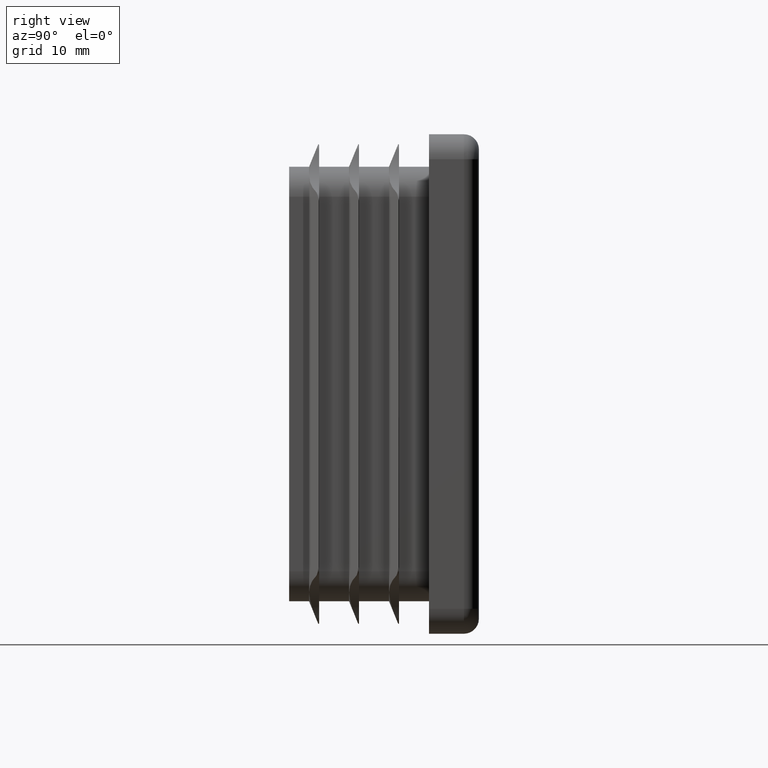
[diagram: clean part render]
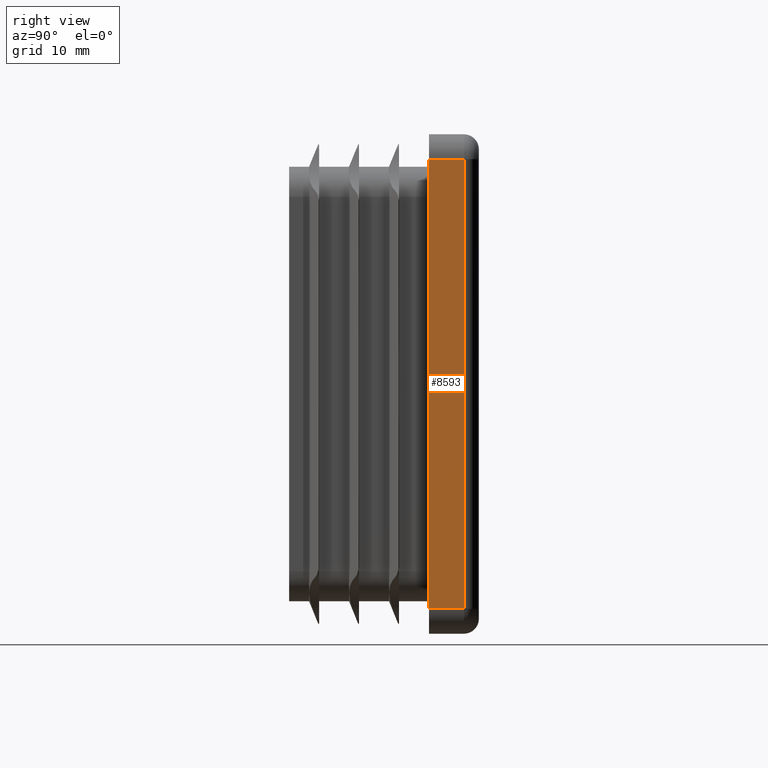
[diagram: same view with one face highlighted and labeled with its STEP entity id]
A machine part, right view. The second image highlights one B-rep face of the part: STEP entity #8593.
In plain terms, the highlighted planar face has unit normal (-1, 0, 0).
Its self-contained STEP definition (entity closure, byte-faithful):
#54 = CARTESIAN_POINT ( 'NONE',  ( 25.00000000000000000, 5.000000000000000000, -25.00000000000000000 ) ) ;
#142 = CARTESIAN_POINT ( 'NONE',  ( 25.00000000000000711, 5.000000000000000000, 22.50000000000000000 ) ) ;
#1197 = LINE ( 'NONE', #10752, #18415 ) ;
#1246 = CARTESIAN_POINT ( 'NONE',  ( 25.00000000000000000, 3.500000000000000000, -22.50000000000000355 ) ) ;
#1396 = VERTEX_POINT ( 'NONE', #1246 ) ;
#1814 = CARTESIAN_POINT ( 'NONE',  ( 25.00000000000000711, 3.500000000000000000, 22.50000000000000000 ) ) ;
#2052 = VERTEX_POINT ( 'NONE', #13715 ) ;
#2076 = CARTESIAN_POINT ( 'NONE',  ( 25.00000000000000000, 5.000000000000000000, -22.50000000000000355 ) ) ;
#2450 = CARTESIAN_POINT ( 'NONE',  ( 25.00000000000000711, 3.500000000000000000, 22.50000000000000000 ) ) ;
#2609 = ORIENTED_EDGE ( 'NONE', *, *, #5703, .T. ) ;
#3029 = LINE ( 'NONE', #2076, #6928 ) ;
#4136 = EDGE_CURVE ( 'NONE', #5835, #2052, #1197, .T. ) ;
#4877 = LINE ( 'NONE', #2450, #19162 ) ;
#5703 = EDGE_CURVE ( 'NONE', #15030, #5835, #17188, .T. ) ;
#5835 = VERTEX_POINT ( 'NONE', #13106 ) ;
#6668 = ORIENTED_EDGE ( 'NONE', *, *, #4136, .T. ) ;
#6685 = AXIS2_PLACEMENT_3D ( 'NONE', #54, #21432, #11500 ) ;
#6928 = VECTOR ( 'NONE', #13718, 1000.000000000000000 ) ;
#7562 = EDGE_LOOP ( 'NONE', ( #16295, #17076, #2609, #6668 ) ) ;
#8593 = ADVANCED_FACE ( 'NONE', ( #16848 ), #18330, .F. ) ;
#10098 = EDGE_CURVE ( 'NONE', #2052, #1396, #3029, .T. ) ;
#10752 = CARTESIAN_POINT ( 'NONE',  ( 25.00000000000000000, 0.000000000000000000, -25.00000000000000000 ) ) ;
#11475 = VECTOR ( 'NONE', #13458, 1000.000000000000000 ) ;
#11500 = DIRECTION ( 'NONE',  ( 1.387778780781445676E-16, 0.000000000000000000, 1.000000000000000000 ) ) ;
#12552 = DIRECTION ( 'NONE',  ( 1.387778780781445676E-16, -0.000000000000000000, 1.000000000000000000 ) ) ;
#13106 = CARTESIAN_POINT ( 'NONE',  ( 25.00000000000000711, 0.000000000000000000, 22.50000000000000000 ) ) ;
#13156 = DIRECTION ( 'NONE',  ( -1.387778780781445676E-16, -0.000000000000000000, -1.000000000000000000 ) ) ;
#13458 = DIRECTION ( 'NONE',  ( 0.000000000000000000, -1.000000000000000000, 0.000000000000000000 ) ) ;
#13715 = CARTESIAN_POINT ( 'NONE',  ( 25.00000000000000000, 0.000000000000000000, -22.50000000000000355 ) ) ;
#13718 = DIRECTION ( 'NONE',  ( -0.000000000000000000, 1.000000000000000000, -0.000000000000000000 ) ) ;
#14763 = EDGE_CURVE ( 'NONE', #1396, #15030, #4877, .T. ) ;
#15030 = VERTEX_POINT ( 'NONE', #1814 ) ;
#16295 = ORIENTED_EDGE ( 'NONE', *, *, #10098, .T. ) ;
#16848 = FACE_OUTER_BOUND ( 'NONE', #7562, .T. ) ;
#17076 = ORIENTED_EDGE ( 'NONE', *, *, #14763, .T. ) ;
#17188 = LINE ( 'NONE', #142, #11475 ) ;
#18330 = PLANE ( 'NONE',  #6685 ) ;
#18415 = VECTOR ( 'NONE', #13156, 1000.000000000000000 ) ;
#19162 = VECTOR ( 'NONE', #12552, 1000.000000000000000 ) ;
#21432 = DIRECTION ( 'NONE',  ( -1.000000000000000000, 0.000000000000000000, 1.387778780781445676E-16 ) ) ;